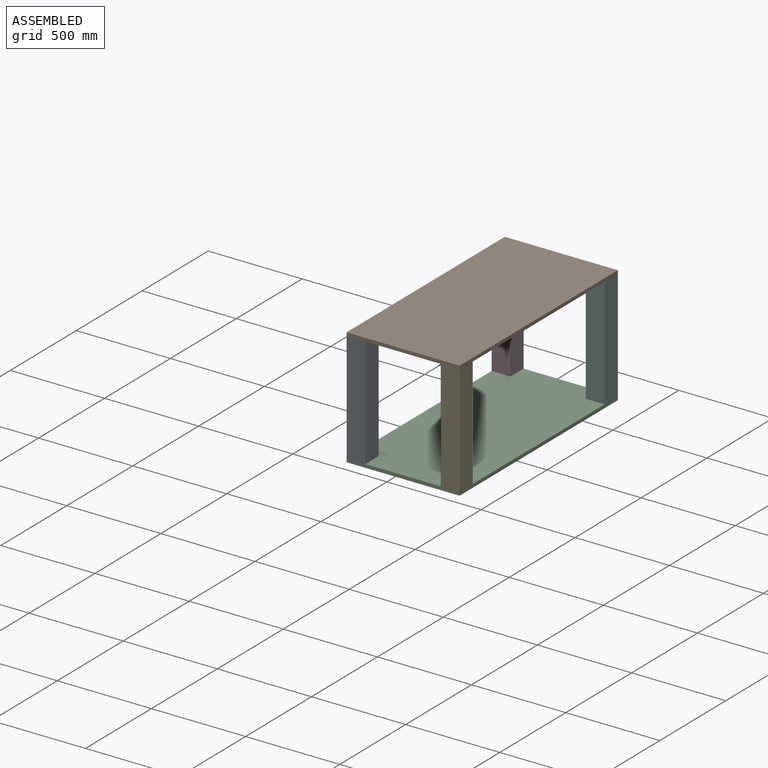
[diagram: assembled view]
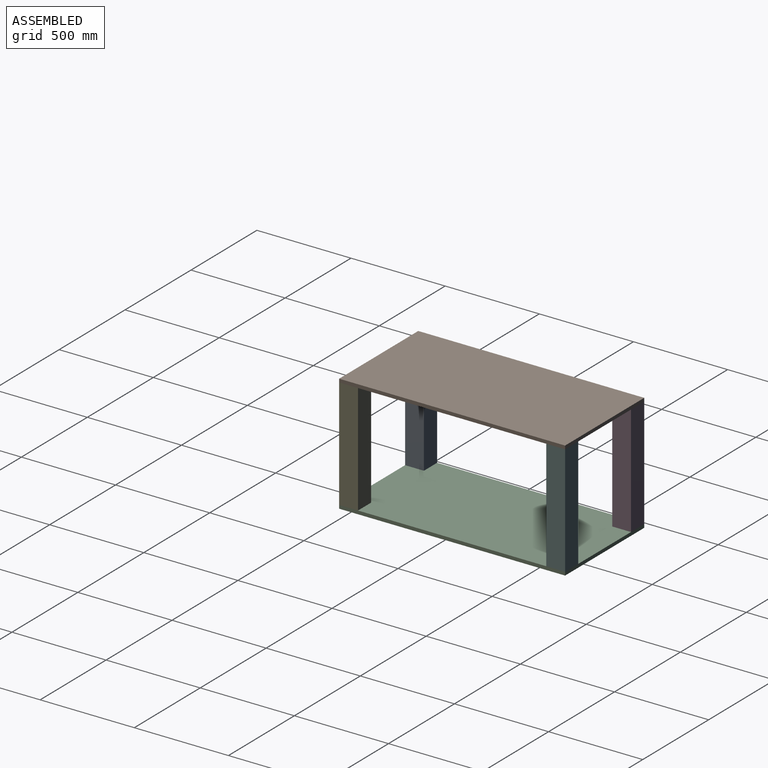
[diagram: assembled view, second angle]
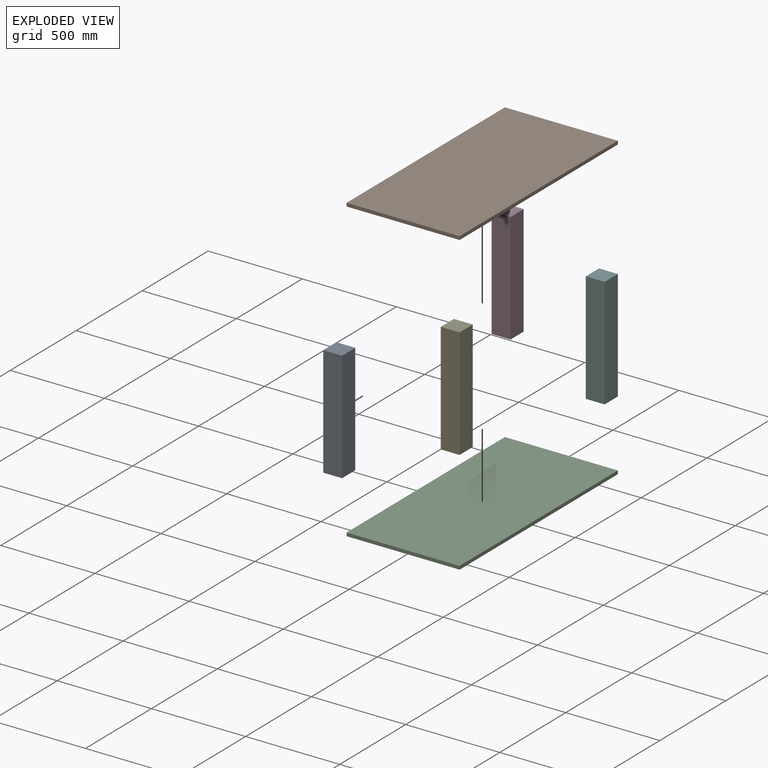
[diagram: exploded view]
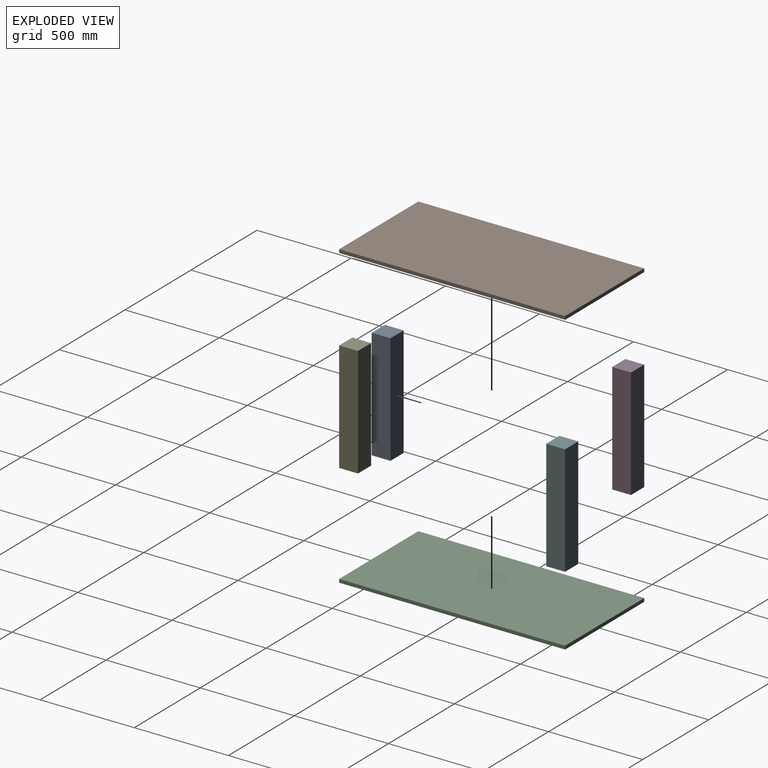
[diagram: exploded view, second angle]
ASSEMBLY  parts=6 mates=15
PART A: 6 faces, bbox 588x100x100 mm
  f0: plane 588x100mm, normal (0,0,1), area 58800mm2, adj f1,f3,f4,f5
  f1: plane 100x100mm, normal (-1,0,0), area 10000mm2, adj f0,f2,f4,f5
  f2: plane 588x100mm, normal (0,0,-1), area 58800mm2, adj f1,f3,f4,f5
  f3: plane 100x100mm, normal (1,0,0), area 10000mm2, adj f0,f2,f4,f5
  f4: plane 588x100mm, normal (0,-1,0), area 58800mm2, adj f0,f1,f2,f3
  f5: plane 588x100mm, normal (0,1,0), area 58800mm2, adj f0,f1,f2,f3
PART B: 6 faces, bbox 600x1200x18 mm
  f0: plane 1200x600mm, normal (0,0,1), area 720000mm2, adj f1,f3,f4,f5
  f1: plane 1200x18mm, normal (-1,0,0), area 21600mm2, adj f0,f2,f4,f5
  f2: plane 1200x600mm, normal (0,0,-1), area 720000mm2, adj f1,f3,f4,f5
  f3: plane 1200x18mm, normal (1,0,0), area 21600mm2, adj f0,f2,f4,f5
  f4: plane 600x18mm, normal (0,-1,0), area 10800mm2, adj f0,f1,f2,f3
  f5: plane 600x18mm, normal (0,1,0), area 10800mm2, adj f0,f1,f2,f3
PART C: same geometry as B
PART D: same geometry as A
PART E: same geometry as A
PART F: same geometry as A
PLACE A rot(axis=(0,1,0),90deg) t=(-244.61,-548.46,300.64)mm
PLACE B t=(5.39,1.54,603.64)mm
PLACE C t=(5.39,1.54,-2.36)mm fixed
PLACE D rot(axis=(0,1,0),90deg) t=(-244.61,551.54,300.64)mm
PLACE E rot(axis=(0,1,0),90deg) t=(255.39,-548.46,300.64)mm
PLACE F rot(axis=(0,1,0),90deg) t=(255.39,551.54,300.64)mm
MATE planar A.f2 <-> C.f1  axis (-1,0,0) through (-294.61,-548.46,300.64)mm
MATE planar F.f3 <-> C.f0  axis (0,0,-1) through (255.39,551.54,6.64)mm
MATE planar B.f4 <-> E.f4  axis (0,-1,0) through (5.39,-598.46,603.64)mm
MATE planar E.f1 <-> B.f2  axis (0,0,1) through (255.39,-548.46,594.64)mm
MATE planar E.f3 <-> C.f0  axis (0,0,-1) through (255.39,-548.46,6.64)mm
MATE planar E.f4 <-> C.f4  axis (0,-1,0) through (255.39,-598.46,300.64)mm
MATE planar F.f5 <-> C.f5  axis (0,1,0) through (255.39,601.54,300.64)mm
MATE planar E.f0 <-> C.f3  axis (1,0,0) through (305.39,-548.46,300.64)mm
MATE planar F.f0 <-> C.f3  axis (1,0,0) through (305.39,551.54,300.64)mm
MATE planar D.f3 <-> C.f0  axis (0,0,-1) through (-244.61,551.54,6.64)mm
MATE planar D.f5 <-> C.f5  axis (0,1,0) through (-194.61,601.54,300.64)mm
MATE planar D.f2 <-> C.f1  axis (-1,0,0) through (-294.61,551.54,300.64)mm
MATE planar B.f3 <-> E.f0  axis (1,0,0) through (305.39,1.54,603.64)mm
MATE planar A.f4 <-> C.f4  axis (0,-1,0) through (-244.61,-598.46,300.64)mm
MATE planar A.f3 <-> C.f0  axis (0,0,-1) through (-244.61,-548.46,6.64)mm
